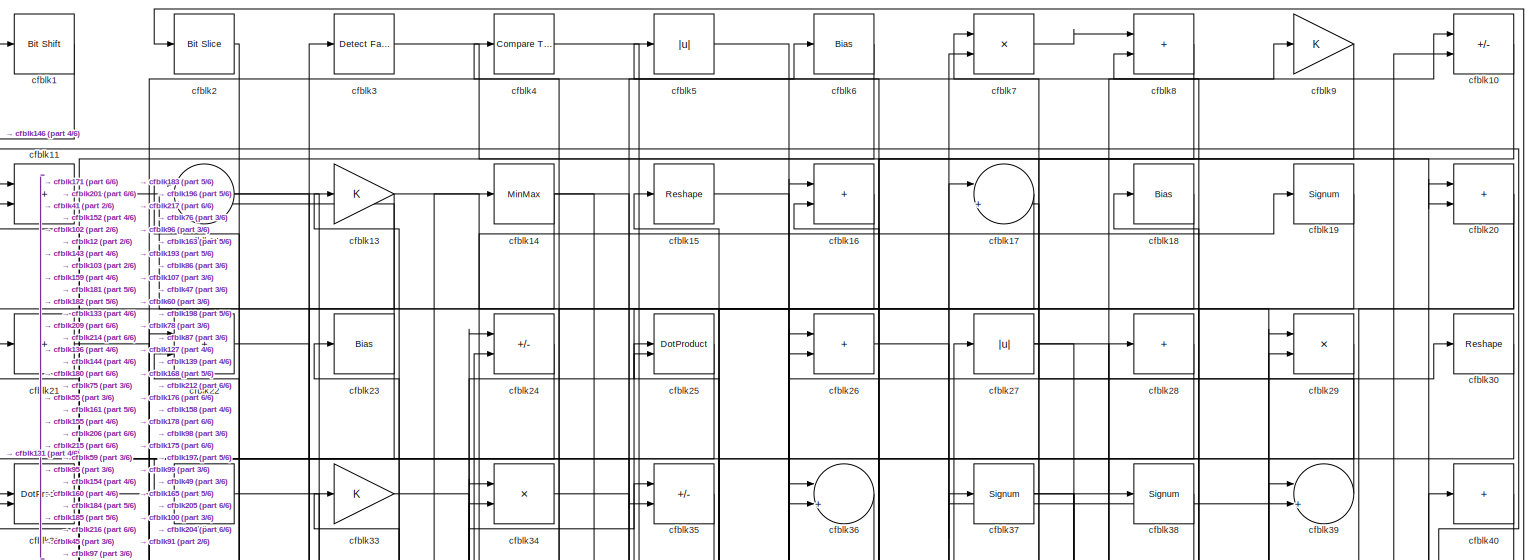
[diagram: root canvas - part 1/6, full width, top band]
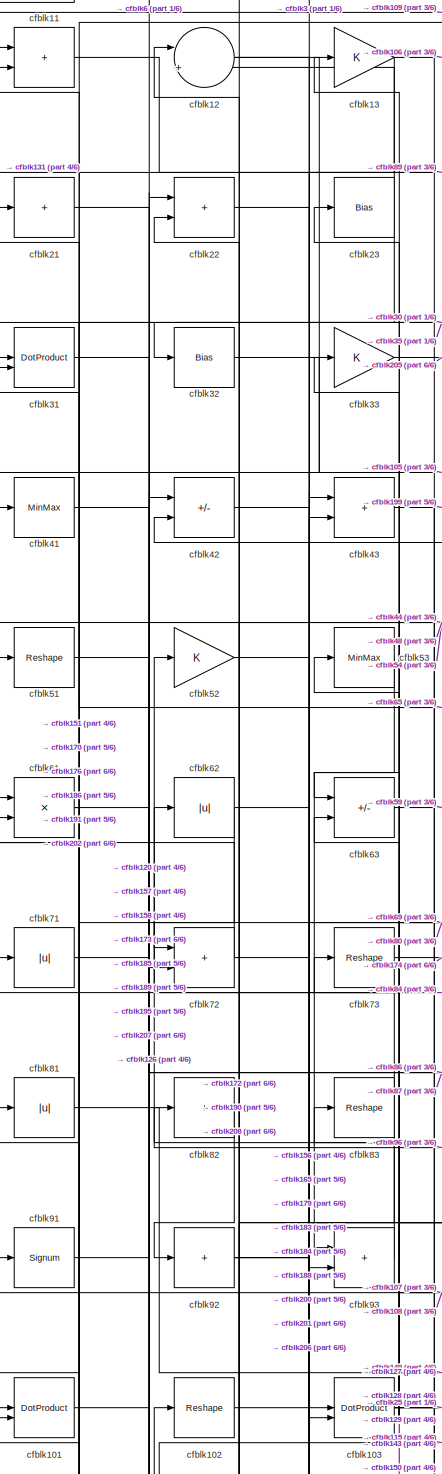
[diagram: root canvas - part 2/6, top left region]
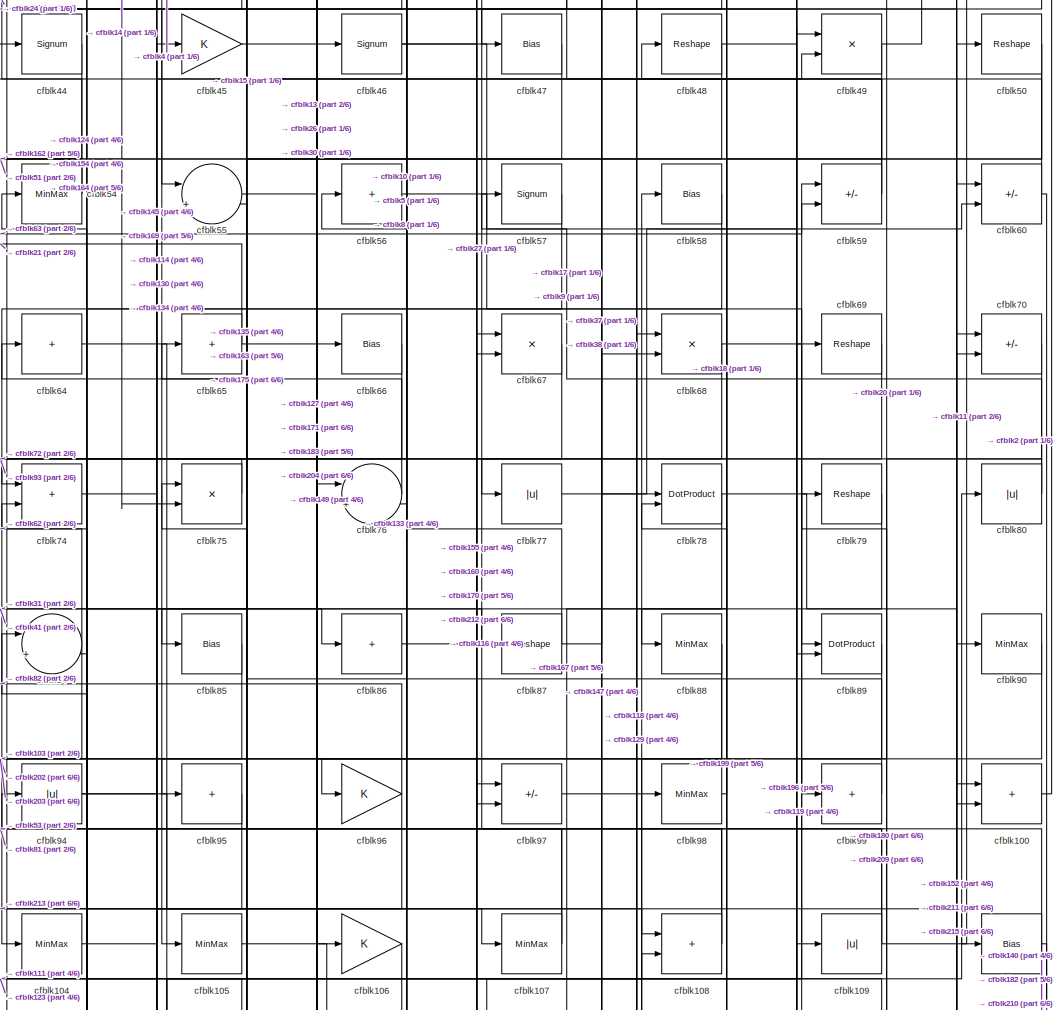
[diagram: root canvas - part 3/6, central region]
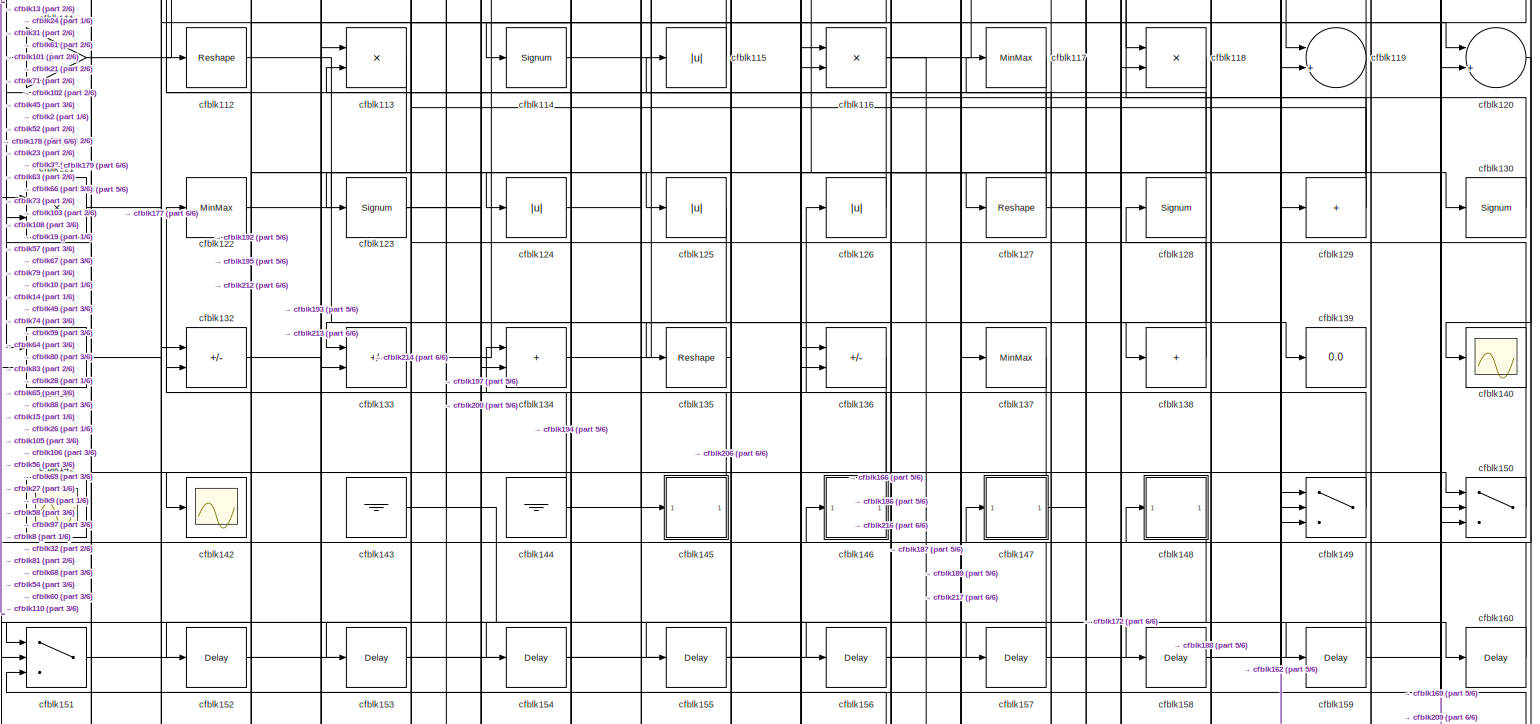
[diagram: root canvas - part 4/6, full width, middle band]
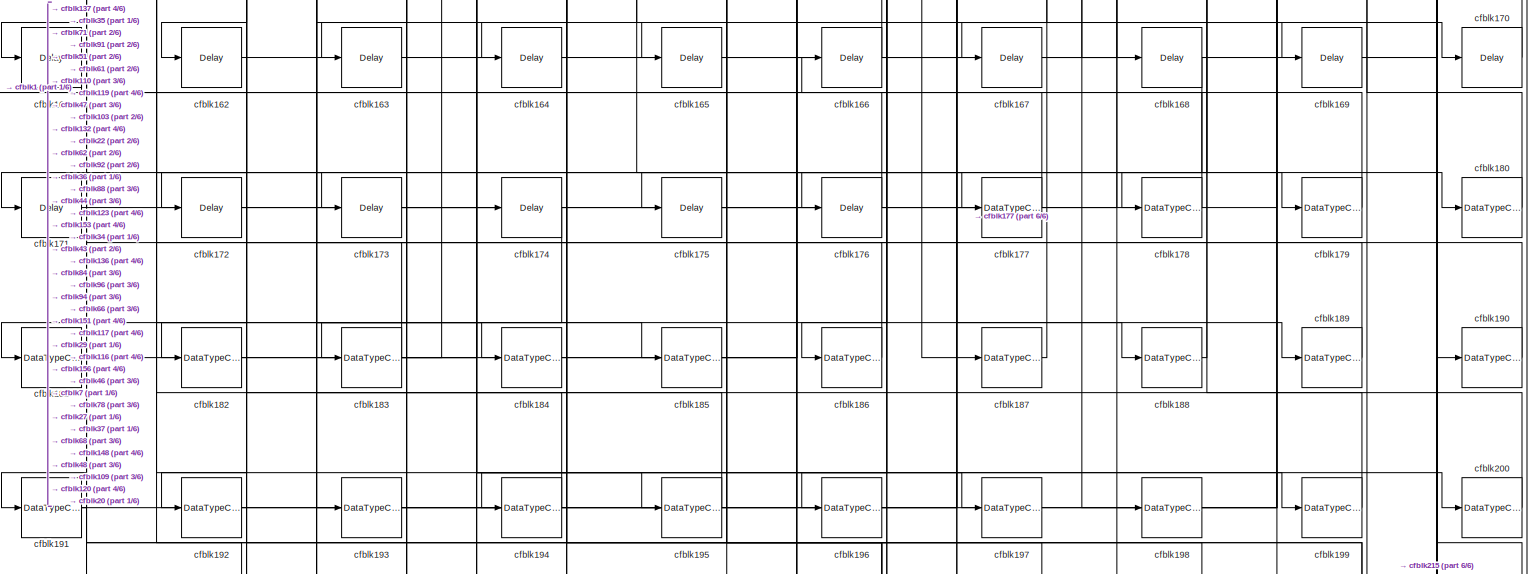
[diagram: root canvas - part 5/6, full width, bottom band]
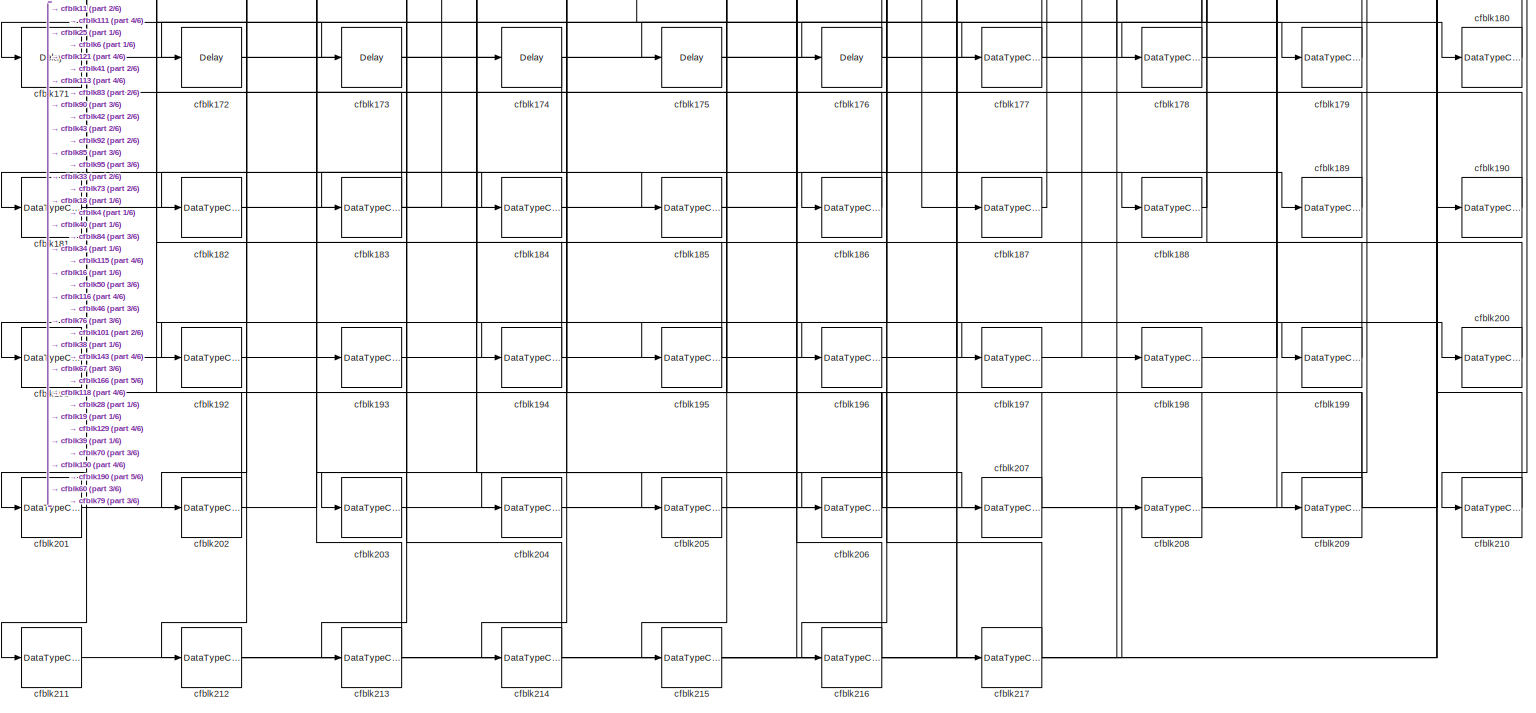
[diagram: root canvas - part 6/6, full width, bottom band]
MODEL slx_230ff69d2a7d
KIND model
CONFIG AbsTol = auto
CONFIG EnableMultiTasking = off
CONFIG FixedStep = auto
CONFIG MaxStep = auto
CONFIG MinStep = auto
CONFIG RelTol = 1e-3
CONFIG SampleTimeConstraint = Unconstrained
CONFIG SolverName = VariableStepAuto
CONFIG StartTime = 0.0
CONFIG StopTime = 10.0
BLOCK [Reference] cfblk1  REF=hdlsllib/Logic and Bit
Operations/Bit Shift
  SourceBlock = hdlsllib/Logic and Bit\nOperations/Bit Shift
  SourceType = Bit Shift
BLOCK [Sum] cfblk10
  IconShape = rectangular
  Inputs = +-
BLOCK [Sum] cfblk100
  IconShape = rectangular
BLOCK [DotProduct] cfblk101
  OutDataTypeStr = Inherit: Inherit via internal rule
BLOCK [Reshape] cfblk102
BLOCK [DotProduct] cfblk103
  OutDataTypeStr = Inherit: Inherit via internal rule
BLOCK [MinMax] cfblk104
BLOCK [MinMax] cfblk105
BLOCK [Gain] cfblk106
BLOCK [MinMax] cfblk107
BLOCK [Sum] cfblk108
  IconShape = rectangular
BLOCK [Abs] cfblk109
  SaturateOnIntegerOverflow = off
BLOCK [Sum] cfblk11
  IconShape = rectangular
BLOCK [Bias] cfblk110
  Bias = 0.0
  SaturateOnIntegerOverflow = off
BLOCK [Gain] cfblk111
BLOCK [Reshape] cfblk112
BLOCK [Product] cfblk113
  Inputs = */
  RndMeth = Zero
  SaturateOnIntegerOverflow = on
BLOCK [Signum] cfblk114
BLOCK [Abs] cfblk115
  SaturateOnIntegerOverflow = off
BLOCK [Product] cfblk116
  Inputs = */
  RndMeth = Zero
  SaturateOnIntegerOverflow = on
BLOCK [MinMax] cfblk117
BLOCK [Product] cfblk118
  Inputs = */
  RndMeth = Zero
  SaturateOnIntegerOverflow = on
BLOCK [Sum] cfblk119
  Inputs = |++
BLOCK [Sum] cfblk12
  Inputs = |++
BLOCK [Sum] cfblk120
  Inputs = |++
BLOCK [Product] cfblk121
  Inputs = */
  RndMeth = Zero
  SaturateOnIntegerOverflow = on
BLOCK [MinMax] cfblk122
BLOCK [Signum] cfblk123
BLOCK [Abs] cfblk124
  SaturateOnIntegerOverflow = off
BLOCK [Abs] cfblk125
  SaturateOnIntegerOverflow = off
BLOCK [Abs] cfblk126
  SaturateOnIntegerOverflow = off
BLOCK [Reshape] cfblk127
BLOCK [Signum] cfblk128
BLOCK [Sum] cfblk129
  IconShape = rectangular
  Inputs = +
BLOCK [Gain] cfblk13
BLOCK [Signum] cfblk130
BLOCK [Sum] cfblk131
  IconShape = rectangular
BLOCK [Sum] cfblk132
  IconShape = rectangular
  Inputs = +-
BLOCK [Sum] cfblk133
  IconShape = rectangular
  Inputs = +-
BLOCK [Sum] cfblk134
  IconShape = rectangular
BLOCK [Reshape] cfblk135
BLOCK [Sum] cfblk136
  IconShape = rectangular
  Inputs = +-
BLOCK [MinMax] cfblk137
BLOCK [Sum] cfblk138
  IconShape = rectangular
  Inputs = +
BLOCK [Display] cfblk139
  Decimation = 1
BLOCK [MinMax] cfblk14
BLOCK [Scope] cfblk140
  Floating = off
  NumInputPorts = 1
  ScopeSpecificationString = Simulink.scopes.TimeScopeBlockCfg('CurrentConfiguration', extmgr.ConfigurationSet(extmgr.Configuration('Core','General UI',true),extmgr.Configuration('Core','Source UI',true),extmgr.Configuration('Sources','WiredSimulink',true,'DataLoggingVariableName','ScopeData2','DataLoggingSaveFormat','Array','DataLoggingLimitDataPoints',true,'DataLoggingDecimation','1'),extmgr.Configuration('Visuals','Time Do...<+868ch>
BLOCK [Scope] cfblk141
  Floating = on
  NumInputPorts = 1
  ScopeSpecificationString = Simulink.scopes.TimeScopeBlockCfg('CurrentConfiguration', extmgr.ConfigurationSet(extmgr.Configuration('Core','General UI',true,'FigureColor',[0.156862745098039 0.156862745098039 0.156862745098039]),extmgr.Configuration('Core','Source UI',true),extmgr.Configuration('Sources','WiredSimulink',true,'DataLoggingVariableName','ScopeData1','DataLoggingSaveFormat','StructureWithTime','DataLoggingLimitDat...<+2713ch>
BLOCK [Scope] cfblk142
  Floating = off
  NumInputPorts = 1
  ScopeSpecificationString = Simulink.scopes.TimeScopeBlockCfg('CurrentConfiguration', extmgr.ConfigurationSet(extmgr.Configuration('Core','General UI',true),extmgr.Configuration('Core','Source UI',true),extmgr.Configuration('Sources','WiredSimulink',true,'DataLoggingVariableName','ScopeData2','DataLoggingSaveFormat','Array','DataLoggingLimitDataPoints',true,'DataLoggingDecimation','1'),extmgr.Configuration('Visuals','Time Do...<+868ch>
BLOCK [Ground] cfblk143
BLOCK [Ground] cfblk144
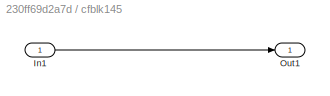
BLOCK [SubSystem] cfblk145
  LibrarySourceBlock = hdlsllib/Ports &\nSubsystems/Subsystem
BLOCK [Inport] cfblk145/In1
BLOCK [Outport] cfblk145/Out1
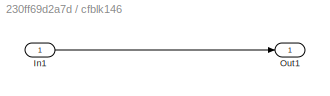
BLOCK [SubSystem] cfblk146
  LibrarySourceBlock = hdlsllib/Ports &\nSubsystems/Subsystem
BLOCK [Inport] cfblk146/In1
BLOCK [Outport] cfblk146/Out1
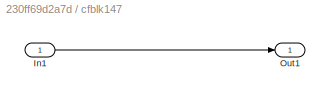
BLOCK [SubSystem] cfblk147
  LibrarySourceBlock = hdlsllib/Ports &\nSubsystems/Subsystem
BLOCK [Inport] cfblk147/In1
BLOCK [Outport] cfblk147/Out1
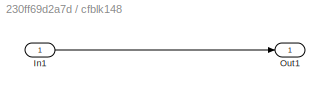
BLOCK [SubSystem] cfblk148
  LibrarySourceBlock = hdlsllib/Ports &\nSubsystems/Subsystem
BLOCK [Inport] cfblk148/In1
BLOCK [Outport] cfblk148/Out1
BLOCK [Switch] cfblk149
  InputSameDT = off
  SaturateOnIntegerOverflow = off
BLOCK [Reshape] cfblk15
BLOCK [Switch] cfblk150
  InputSameDT = off
  SaturateOnIntegerOverflow = off
BLOCK [Switch] cfblk151
  InputSameDT = off
  SaturateOnIntegerOverflow = off
BLOCK [Delay] cfblk152
  InputPortMap = u0
  SampleTime = 1
BLOCK [Delay] cfblk153
  InputPortMap = u0
  SampleTime = 1
BLOCK [Delay] cfblk154
  InputPortMap = u0
  SampleTime = 1
BLOCK [Delay] cfblk155
  InputPortMap = u0
  SampleTime = 1
BLOCK [Delay] cfblk156
  InputPortMap = u0
  SampleTime = 1
BLOCK [Delay] cfblk157
  InputPortMap = u0
  SampleTime = 1
BLOCK [Delay] cfblk158
  InputPortMap = u0
  SampleTime = 1
BLOCK [Delay] cfblk159
  InputPortMap = u0
  SampleTime = 1
BLOCK [Sum] cfblk16
  IconShape = rectangular
BLOCK [Delay] cfblk160
  InputPortMap = u0
  SampleTime = 1
BLOCK [Delay] cfblk161
  InputPortMap = u0
  SampleTime = 1
BLOCK [Delay] cfblk162
  InputPortMap = u0
  SampleTime = 1
BLOCK [Delay] cfblk163
  InputPortMap = u0
  SampleTime = 1
BLOCK [Delay] cfblk164
  InputPortMap = u0
  SampleTime = 1
BLOCK [Delay] cfblk165
  InputPortMap = u0
  SampleTime = 1
BLOCK [Delay] cfblk166
  InputPortMap = u0
  SampleTime = 1
BLOCK [Delay] cfblk167
  InputPortMap = u0
  SampleTime = 1
BLOCK [Delay] cfblk168
  InputPortMap = u0
  SampleTime = 1
BLOCK [Delay] cfblk169
  InputPortMap = u0
  SampleTime = 1
BLOCK [Sum] cfblk17
  Inputs = |++
BLOCK [Delay] cfblk170
  InputPortMap = u0
  SampleTime = 1
BLOCK [Delay] cfblk171
  InputPortMap = u0
  SampleTime = 1
BLOCK [Delay] cfblk172
  InputPortMap = u0
  SampleTime = 1
BLOCK [Delay] cfblk173
  InputPortMap = u0
  SampleTime = 1
BLOCK [Delay] cfblk174
  InputPortMap = u0
  SampleTime = 1
BLOCK [Delay] cfblk175
  InputPortMap = u0
  SampleTime = 1
BLOCK [Delay] cfblk176
  InputPortMap = u0
  SampleTime = 1
BLOCK [DataTypeConversion] cfblk177
  OutDataTypeStr = uint8
  RndMeth = Floor
  SaturateOnIntegerOverflow = off
BLOCK [DataTypeConversion] cfblk178
  OutDataTypeStr = uint8
  RndMeth = Floor
  SaturateOnIntegerOverflow = off
BLOCK [DataTypeConversion] cfblk179
  OutDataTypeStr = uint8
  RndMeth = Floor
  SaturateOnIntegerOverflow = off
BLOCK [Bias] cfblk18
  Bias = 0.0
  SaturateOnIntegerOverflow = off
BLOCK [DataTypeConversion] cfblk180
  OutDataTypeStr = uint8
  RndMeth = Floor
  SaturateOnIntegerOverflow = off
BLOCK [DataTypeConversion] cfblk181
  OutDataTypeStr = uint8
  RndMeth = Floor
  SaturateOnIntegerOverflow = off
BLOCK [DataTypeConversion] cfblk182
  OutDataTypeStr = uint8
  RndMeth = Floor
  SaturateOnIntegerOverflow = off
BLOCK [DataTypeConversion] cfblk183
  RndMeth = Floor
  SaturateOnIntegerOverflow = off
BLOCK [DataTypeConversion] cfblk184
  OutDataTypeStr = uint8
  RndMeth = Floor
  SaturateOnIntegerOverflow = off
BLOCK [DataTypeConversion] cfblk185
  OutDataTypeStr = uint8
  RndMeth = Floor
  SaturateOnIntegerOverflow = off
BLOCK [DataTypeConversion] cfblk186
  OutDataTypeStr = uint8
  RndMeth = Floor
  SaturateOnIntegerOverflow = off
BLOCK [DataTypeConversion] cfblk187
  OutDataTypeStr = uint8
  RndMeth = Floor
  SaturateOnIntegerOverflow = off
BLOCK [DataTypeConversion] cfblk188
  OutDataTypeStr = uint8
  RndMeth = Floor
  SaturateOnIntegerOverflow = off
BLOCK [DataTypeConversion] cfblk189
  OutDataTypeStr = uint8
  RndMeth = Floor
  SaturateOnIntegerOverflow = off
BLOCK [Signum] cfblk19
BLOCK [DataTypeConversion] cfblk190
  OutDataTypeStr = uint8
  RndMeth = Floor
  SaturateOnIntegerOverflow = off
BLOCK [DataTypeConversion] cfblk191
  RndMeth = Floor
  SaturateOnIntegerOverflow = off
BLOCK [DataTypeConversion] cfblk192
  OutDataTypeStr = uint8
  RndMeth = Floor
  SaturateOnIntegerOverflow = off
BLOCK [DataTypeConversion] cfblk193
  OutDataTypeStr = uint8
  RndMeth = Floor
  SaturateOnIntegerOverflow = off
BLOCK [DataTypeConversion] cfblk194
  OutDataTypeStr = uint8
  RndMeth = Floor
  SaturateOnIntegerOverflow = off
BLOCK [DataTypeConversion] cfblk195
  OutDataTypeStr = uint8
  RndMeth = Floor
  SaturateOnIntegerOverflow = off
BLOCK [DataTypeConversion] cfblk196
  OutDataTypeStr = uint8
  RndMeth = Floor
  SaturateOnIntegerOverflow = off
BLOCK [DataTypeConversion] cfblk197
  OutDataTypeStr = uint8
  RndMeth = Floor
  SaturateOnIntegerOverflow = off
BLOCK [DataTypeConversion] cfblk198
  OutDataTypeStr = uint8
  RndMeth = Floor
  SaturateOnIntegerOverflow = off
BLOCK [DataTypeConversion] cfblk199
  OutDataTypeStr = uint8
  RndMeth = Floor
  SaturateOnIntegerOverflow = off
BLOCK [Reference] cfblk2  REF=hdlsllib/Logic and Bit
Operations/Bit Slice
  SourceBlock = hdlsllib/Logic and Bit\nOperations/Bit Slice
  SourceType = Bit Slice
BLOCK [Sum] cfblk20
  IconShape = rectangular
BLOCK [DataTypeConversion] cfblk200
  OutDataTypeStr = uint8
  RndMeth = Floor
  SaturateOnIntegerOverflow = off
BLOCK [DataTypeConversion] cfblk201
  OutDataTypeStr = uint8
  RndMeth = Floor
  SaturateOnIntegerOverflow = off
BLOCK [DataTypeConversion] cfblk202
  OutDataTypeStr = uint8
  RndMeth = Floor
  SaturateOnIntegerOverflow = off
BLOCK [DataTypeConversion] cfblk203
  OutDataTypeStr = uint8
  RndMeth = Floor
  SaturateOnIntegerOverflow = off
BLOCK [DataTypeConversion] cfblk204
  OutDataTypeStr = uint8
  RndMeth = Floor
  SaturateOnIntegerOverflow = off
BLOCK [DataTypeConversion] cfblk205
  OutDataTypeStr = uint8
  RndMeth = Floor
  SaturateOnIntegerOverflow = off
BLOCK [DataTypeConversion] cfblk206
  RndMeth = Floor
  SaturateOnIntegerOverflow = off
BLOCK [DataTypeConversion] cfblk207
  OutDataTypeStr = uint8
  RndMeth = Floor
  SaturateOnIntegerOverflow = off
BLOCK [DataTypeConversion] cfblk208
  OutDataTypeStr = uint8
  RndMeth = Floor
  SaturateOnIntegerOverflow = off
BLOCK [DataTypeConversion] cfblk209
  RndMeth = Floor
  SaturateOnIntegerOverflow = off
BLOCK [Sum] cfblk21
  IconShape = rectangular
  Inputs = +
BLOCK [DataTypeConversion] cfblk210
  OutDataTypeStr = uint8
  RndMeth = Floor
  SaturateOnIntegerOverflow = off
BLOCK [DataTypeConversion] cfblk211
  OutDataTypeStr = uint8
  RndMeth = Floor
  SaturateOnIntegerOverflow = off
BLOCK [DataTypeConversion] cfblk212
  RndMeth = Floor
  SaturateOnIntegerOverflow = off
BLOCK [DataTypeConversion] cfblk213
  OutDataTypeStr = uint8
  RndMeth = Floor
  SaturateOnIntegerOverflow = off
BLOCK [DataTypeConversion] cfblk214
  OutDataTypeStr = uint8
  RndMeth = Floor
  SaturateOnIntegerOverflow = off
BLOCK [DataTypeConversion] cfblk215
  RndMeth = Floor
  SaturateOnIntegerOverflow = off
BLOCK [DataTypeConversion] cfblk216
  OutDataTypeStr = uint8
  RndMeth = Floor
  SaturateOnIntegerOverflow = off
BLOCK [DataTypeConversion] cfblk217
  OutDataTypeStr = uint8
  RndMeth = Floor
  SaturateOnIntegerOverflow = off
BLOCK [Sum] cfblk22
  IconShape = rectangular
BLOCK [Bias] cfblk23
  Bias = 0.0
  SaturateOnIntegerOverflow = off
BLOCK [Sum] cfblk24
  IconShape = rectangular
  Inputs = +-
BLOCK [DotProduct] cfblk25
  OutDataTypeStr = Inherit: Inherit via internal rule
BLOCK [Sum] cfblk26
  IconShape = rectangular
BLOCK [Abs] cfblk27
  SaturateOnIntegerOverflow = off
BLOCK [Sum] cfblk28
  IconShape = rectangular
  Inputs = +
BLOCK [Product] cfblk29
  Inputs = */
  RndMeth = Zero
  SaturateOnIntegerOverflow = on
BLOCK [Reference] cfblk3  REF=hdlsllib/Logic and Bit
Operations/Detect Fall
Negative
  SourceBlock = hdlsllib/Logic and Bit\nOperations/Detect Fall\nNegative
  SourceType = Detect Fall Negative
BLOCK [Reshape] cfblk30
BLOCK [DotProduct] cfblk31
  OutDataTypeStr = Inherit: Inherit via internal rule
BLOCK [Bias] cfblk32
  Bias = 0.0
  SaturateOnIntegerOverflow = off
BLOCK [Gain] cfblk33
BLOCK [Product] cfblk34
  Inputs = */
  RndMeth = Zero
  SaturateOnIntegerOverflow = on
BLOCK [Sum] cfblk35
  IconShape = rectangular
  Inputs = +-
BLOCK [Sum] cfblk36
  Inputs = |++
BLOCK [Signum] cfblk37
BLOCK [Signum] cfblk38
BLOCK [Sum] cfblk39
  Inputs = |++
BLOCK [Reference] cfblk4  REF=hdlsllib/Logic and Bit
Operations/Compare
To Constant
  SourceBlock = hdlsllib/Logic and Bit\nOperations/Compare\nTo Constant
  SourceType = Compare To Constant
BLOCK [Sum] cfblk40
  IconShape = rectangular
  Inputs = +
BLOCK [MinMax] cfblk41
BLOCK [Sum] cfblk42
  IconShape = rectangular
  Inputs = +-
BLOCK [Sum] cfblk43
  IconShape = rectangular
BLOCK [Signum] cfblk44
BLOCK [Gain] cfblk45
BLOCK [Signum] cfblk46
BLOCK [Bias] cfblk47
  Bias = 0.0
  SaturateOnIntegerOverflow = off
BLOCK [Reshape] cfblk48
BLOCK [Product] cfblk49
  Inputs = */
  RndMeth = Zero
  SaturateOnIntegerOverflow = on
BLOCK [Abs] cfblk5
  SaturateOnIntegerOverflow = off
BLOCK [Reshape] cfblk50
BLOCK [Reshape] cfblk51
BLOCK [Gain] cfblk52
BLOCK [MinMax] cfblk53
BLOCK [MinMax] cfblk54
BLOCK [Sum] cfblk55
  Inputs = |++
BLOCK [Sum] cfblk56
  IconShape = rectangular
  Inputs = +
BLOCK [Signum] cfblk57
BLOCK [Bias] cfblk58
  Bias = 0.0
  SaturateOnIntegerOverflow = off
BLOCK [Sum] cfblk59
  IconShape = rectangular
  Inputs = +-
BLOCK [Bias] cfblk6
  Bias = 0.0
  SaturateOnIntegerOverflow = off
BLOCK [Sum] cfblk60
  IconShape = rectangular
  Inputs = +-
BLOCK [Product] cfblk61
  Inputs = */
  RndMeth = Zero
  SaturateOnIntegerOverflow = on
BLOCK [Abs] cfblk62
  SaturateOnIntegerOverflow = off
BLOCK [Sum] cfblk63
  IconShape = rectangular
  Inputs = +-
BLOCK [Sum] cfblk64
  IconShape = rectangular
  Inputs = +
BLOCK [Sum] cfblk65
  IconShape = rectangular
  Inputs = +
BLOCK [Bias] cfblk66
  Bias = 0.0
  SaturateOnIntegerOverflow = off
BLOCK [Product] cfblk67
  Inputs = */
  RndMeth = Zero
  SaturateOnIntegerOverflow = on
BLOCK [Product] cfblk68
  Inputs = */
  RndMeth = Zero
  SaturateOnIntegerOverflow = on
BLOCK [Reshape] cfblk69
BLOCK [Product] cfblk7
  Inputs = */
  RndMeth = Zero
  SaturateOnIntegerOverflow = on
BLOCK [Sum] cfblk70
  IconShape = rectangular
  Inputs = +-
BLOCK [Abs] cfblk71
  SaturateOnIntegerOverflow = off
BLOCK [Sum] cfblk72
  IconShape = rectangular
BLOCK [Reshape] cfblk73
BLOCK [Sum] cfblk74
  IconShape = rectangular
BLOCK [Product] cfblk75
  Inputs = */
  RndMeth = Zero
  SaturateOnIntegerOverflow = on
BLOCK [Sum] cfblk76
  Inputs = |++
BLOCK [Abs] cfblk77
  SaturateOnIntegerOverflow = off
BLOCK [DotProduct] cfblk78
  OutDataTypeStr = Inherit: Inherit via internal rule
BLOCK [Reshape] cfblk79
BLOCK [Sum] cfblk8
  IconShape = rectangular
BLOCK [Abs] cfblk80
  SaturateOnIntegerOverflow = off
BLOCK [Abs] cfblk81
  SaturateOnIntegerOverflow = off
BLOCK [Sum] cfblk82
  IconShape = rectangular
  Inputs = +
BLOCK [Reshape] cfblk83
BLOCK [Sum] cfblk84
  Inputs = |++
BLOCK [Bias] cfblk85
  Bias = 0.0
  SaturateOnIntegerOverflow = off
BLOCK [Sum] cfblk86
  IconShape = rectangular
  Inputs = +
BLOCK [Reshape] cfblk87
BLOCK [MinMax] cfblk88
BLOCK [DotProduct] cfblk89
  OutDataTypeStr = Inherit: Inherit via internal rule
BLOCK [Gain] cfblk9
BLOCK [MinMax] cfblk90
BLOCK [Signum] cfblk91
BLOCK [Sum] cfblk92
  IconShape = rectangular
  Inputs = +
BLOCK [Sum] cfblk93
  IconShape = rectangular
BLOCK [Abs] cfblk94
  SaturateOnIntegerOverflow = off
BLOCK [Sum] cfblk95
  IconShape = rectangular
  Inputs = +
BLOCK [Gain] cfblk96
BLOCK [Sum] cfblk97
  IconShape = rectangular
  Inputs = +-
BLOCK [MinMax] cfblk98
BLOCK [Sum] cfblk99
  IconShape = rectangular
  Inputs = +
LINE cfblk100:1 -> cfblk2:1
LINE cfblk101:1 -> cfblk120:1
LINE cfblk102:1 -> cfblk3:1
NET cfblk103:1 -> cfblk150:1, cfblk25:1, cfblk35:1
LINE cfblk104:1 -> cfblk108:1
LINE cfblk105:1 -> cfblk149:2
LINE cfblk106:1 -> cfblk133:1
NET cfblk107:1 -> cfblk27:1, cfblk81:1
NET cfblk108:1 -> cfblk53:1, cfblk94:1
NET cfblk109:1 -> cfblk11:1, cfblk74:2, cfblk78:2
LINE cfblk10:1 -> cfblk96:1
NET cfblk110:1 -> cfblk140:1, cfblk182:1, cfblk75:1
LINE cfblk111:1 -> cfblk45:1
LINE cfblk112:1 -> cfblk138:1
LINE cfblk113:1 -> cfblk212:1
LINE cfblk114:1 -> cfblk80:1
LINE cfblk115:1 -> cfblk83:1
NET cfblk116:1 -> cfblk187:1, cfblk69:1
LINE cfblk117:1 -> cfblk186:1
LINE cfblk118:1 -> cfblk216:1
NET cfblk119:1 -> cfblk192:1, cfblk54:1
LINE cfblk11:1 -> cfblk89:2
LINE cfblk120:1 -> cfblk147:1
LINE cfblk121:1 -> cfblk177:1
LINE cfblk122:1 -> cfblk125:1
NET cfblk123:1 -> cfblk108:2, cfblk197:1
LINE cfblk124:1 -> cfblk49:2
LINE cfblk125:1 -> cfblk153:1
LINE cfblk126:1 -> cfblk102:1
NET cfblk127:1 -> cfblk23:1, cfblk9:1
NET cfblk128:1 -> cfblk134:2, cfblk63:2
NET cfblk129:1 -> cfblk58:1, cfblk73:1
NET cfblk12:1 -> cfblk105:1, cfblk35:2
LINE cfblk130:1 -> cfblk56:1
LINE cfblk131:1 -> cfblk159:1
LINE cfblk132:1 -> cfblk193:1
LINE cfblk133:1 -> cfblk19:1
LINE cfblk134:1 -> cfblk59:2
LINE cfblk135:1 -> cfblk65:1
LINE cfblk136:1 -> cfblk194:1
LINE cfblk137:1 -> cfblk191:1
LINE cfblk138:1 -> cfblk128:1
NET cfblk13:1 -> cfblk106:1, cfblk131:1
NET cfblk143:1 -> cfblk13:1, cfblk14:1, cfblk217:1
NET cfblk144:1 -> cfblk10:1, cfblk112:1
LINE cfblk145/In1:1 -> cfblk145/Out1:1
LINE cfblk145:1 -> cfblk122:1
LINE cfblk146/In1:1 -> cfblk146/Out1:1
LINE cfblk146:1 -> cfblk126:1
LINE cfblk147/In1:1 -> cfblk147/Out1:1
NET cfblk147:1 -> cfblk142:1, cfblk68:2
LINE cfblk148/In1:1 -> cfblk148/Out1:1
LINE cfblk148:1 -> cfblk151:2
LINE cfblk149:1 -> cfblk134:1
NET cfblk14:1 -> cfblk133:2, cfblk136:2, cfblk75:2
LINE cfblk150:1 -> cfblk33:1
LINE cfblk151:1 -> cfblk136:1
LINE cfblk152:1 -> cfblk60:1
LINE cfblk153:1 -> cfblk200:1
LINE cfblk154:1 -> cfblk26:1
LINE cfblk155:1 -> cfblk97:1
LINE cfblk156:1 -> cfblk189:1
LINE cfblk157:1 -> cfblk31:1
LINE cfblk158:1 -> cfblk8:2
LINE cfblk159:1 -> cfblk24:1
LINE cfblk15:1 -> cfblk160:1
LINE cfblk160:1 -> cfblk67:1
LINE cfblk161:1 -> cfblk1:1
LINE cfblk162:1 -> cfblk119:2
LINE cfblk163:1 -> cfblk7:2
LINE cfblk164:1 -> cfblk84:1
LINE cfblk165:1 -> cfblk20:1
LINE cfblk166:1 -> cfblk151:3
LINE cfblk167:1 -> cfblk68:1
LINE cfblk168:1 -> cfblk181:1
LINE cfblk169:1 -> cfblk120:2
LINE cfblk16:1 -> cfblk215:1
LINE cfblk170:1 -> cfblk61:2
LINE cfblk171:1 -> cfblk76:1
LINE cfblk172:1 -> cfblk118:2
LINE cfblk173:1 -> cfblk207:1
LINE cfblk174:1 -> cfblk211:1
LINE cfblk175:1 -> cfblk39:1
LINE cfblk176:1 -> cfblk101:2
LINE cfblk177:1 -> cfblk166:1
LINE cfblk178:1 -> cfblk121:1
LINE cfblk179:1 -> cfblk121:2
LINE cfblk17:1 -> cfblk95:1
LINE cfblk180:1 -> cfblk79:1
LINE cfblk181:1 -> cfblk34:1
LINE cfblk182:1 -> cfblk34:2
NET cfblk183:1 -> cfblk103:1, cfblk44:1, cfblk66:1
LINE cfblk184:1 -> cfblk36:1
LINE cfblk185:1 -> cfblk36:2
LINE cfblk186:1 -> cfblk71:1
LINE cfblk187:1 -> cfblk117:1
LINE cfblk188:1 -> cfblk148:1
LINE cfblk189:1 -> cfblk22:1
LINE cfblk18:1 -> cfblk214:1
LINE cfblk190:1 -> cfblk22:2
NET cfblk191:1 -> cfblk116:2, cfblk91:1
LINE cfblk192:1 -> cfblk137:1
LINE cfblk193:1 -> cfblk37:1
LINE cfblk194:1 -> cfblk132:1
LINE cfblk195:1 -> cfblk132:2
LINE cfblk196:1 -> cfblk109:1
LINE cfblk197:1 -> cfblk29:1
LINE cfblk198:1 -> cfblk29:2
LINE cfblk199:1 -> cfblk48:1
LINE cfblk19:1 -> cfblk178:1
LINE cfblk1:1 -> cfblk146:1
LINE cfblk200:1 -> cfblk43:1
LINE cfblk201:1 -> cfblk43:2
LINE cfblk202:1 -> cfblk11:2
LINE cfblk203:1 -> cfblk90:1
LINE cfblk204:1 -> cfblk46:1
LINE cfblk205:1 -> cfblk40:1
NET cfblk206:1 -> cfblk111:1, cfblk115:1, cfblk129:1, cfblk25:2
LINE cfblk207:1 -> cfblk42:1
LINE cfblk208:1 -> cfblk42:2
NET cfblk209:1 -> cfblk150:3, cfblk4:1, cfblk84:2
NET cfblk20:1 -> cfblk55:1, cfblk99:1
LINE cfblk210:1 -> cfblk70:1
LINE cfblk211:1 -> cfblk70:2
NET cfblk212:1 -> cfblk116:1, cfblk28:1, cfblk67:2
LINE cfblk213:1 -> cfblk113:1
LINE cfblk214:1 -> cfblk113:2
NET cfblk215:1 -> cfblk190:1, cfblk208:1, cfblk50:1
LINE cfblk216:1 -> cfblk16:1
LINE cfblk217:1 -> cfblk16:2
LINE cfblk21:1 -> cfblk158:1
LINE cfblk22:1 -> cfblk188:1
NET cfblk23:1 -> cfblk12:2, cfblk32:1
LINE cfblk24:1 -> cfblk131:2
LINE cfblk25:1 -> cfblk171:1
LINE cfblk26:1 -> cfblk39:2
NET cfblk27:1 -> cfblk139:1, cfblk168:1
LINE cfblk28:1 -> cfblk155:1
LINE cfblk29:1 -> cfblk196:1
LINE cfblk2:1 -> cfblk152:1
LINE cfblk30:1 -> cfblk41:1
LINE cfblk31:1 -> cfblk87:1
LINE cfblk32:1 -> cfblk149:3
LINE cfblk33:1 -> cfblk205:1
LINE cfblk34:1 -> cfblk180:1
LINE cfblk35:1 -> cfblk161:1
LINE cfblk36:1 -> cfblk183:1
NET cfblk37:1 -> cfblk198:1, cfblk78:1
LINE cfblk38:1 -> cfblk176:1
LINE cfblk39:1 -> cfblk7:1
LINE cfblk3:1 -> cfblk20:2
LINE cfblk40:1 -> cfblk204:1
NET cfblk41:1 -> cfblk173:1, cfblk86:1
LINE cfblk42:1 -> cfblk206:1
LINE cfblk43:1 -> cfblk199:1
LINE cfblk44:1 -> cfblk63:1
LINE cfblk45:1 -> cfblk30:1
NET cfblk46:1 -> cfblk170:1, cfblk89:1
LINE cfblk47:1 -> cfblk162:1
NET cfblk48:1 -> cfblk110:1, cfblk72:2
NET cfblk49:1 -> cfblk10:2, cfblk88:1
LINE cfblk4:1 -> cfblk100:1
NET cfblk50:1 -> cfblk175:1, cfblk85:1
LINE cfblk51:1 -> cfblk195:1
LINE cfblk52:1 -> cfblk156:1
LINE cfblk53:1 -> cfblk93:1
NET cfblk54:1 -> cfblk12:1, cfblk51:1
LINE cfblk55:1 -> cfblk26:2
LINE cfblk56:1 -> cfblk60:2
LINE cfblk57:1 -> cfblk154:1
LINE cfblk58:1 -> cfblk104:1
NET cfblk59:1 -> cfblk15:1, cfblk24:2
LINE cfblk5:1 -> cfblk97:2
NET cfblk60:1 -> cfblk17:2, cfblk210:1
NET cfblk61:1 -> cfblk151:1, cfblk185:1
NET cfblk62:1 -> cfblk101:1, cfblk184:1
LINE cfblk63:1 -> cfblk59:1
LINE cfblk64:1 -> cfblk130:1
NET cfblk65:1 -> cfblk127:1, cfblk21:1
LINE cfblk66:1 -> cfblk123:1
LINE cfblk67:1 -> cfblk124:1
NET cfblk68:1 -> cfblk119:1, cfblk77:1
LINE cfblk69:1 -> cfblk93:2
LINE cfblk6:1 -> cfblk201:1
LINE cfblk70:1 -> cfblk209:1
LINE cfblk71:1 -> cfblk157:1
NET cfblk72:1 -> cfblk150:2, cfblk31:2
LINE cfblk73:1 -> cfblk174:1
LINE cfblk74:1 -> cfblk145:1
LINE cfblk75:1 -> cfblk74:1
LINE cfblk76:1 -> cfblk64:1
LINE cfblk77:1 -> cfblk49:1
NET cfblk78:1 -> cfblk100:2, cfblk167:1
LINE cfblk79:1 -> cfblk114:1
LINE cfblk7:1 -> cfblk8:1
NET cfblk80:1 -> cfblk57:1, cfblk72:1
LINE cfblk81:1 -> cfblk149:1
LINE cfblk82:1 -> cfblk92:1
NET cfblk83:1 -> cfblk172:1, cfblk61:1
NET cfblk84:1 -> cfblk103:2, cfblk62:1
LINE cfblk85:1 -> cfblk203:1
LINE cfblk86:1 -> cfblk17:1
NET cfblk87:1 -> cfblk38:1, cfblk5:1
NET cfblk88:1 -> cfblk135:1, cfblk163:1
LINE cfblk89:1 -> cfblk98:1
LINE cfblk8:1 -> cfblk76:2
LINE cfblk90:1 -> cfblk202:1
LINE cfblk91:1 -> cfblk6:1
NET cfblk92:1 -> cfblk165:1, cfblk179:1
LINE cfblk93:1 -> cfblk52:1
NET cfblk94:1 -> cfblk107:1, cfblk169:1
LINE cfblk95:1 -> cfblk213:1
NET cfblk96:1 -> cfblk164:1, cfblk82:1
LINE cfblk97:1 -> cfblk118:1
LINE cfblk98:1 -> cfblk18:1
LINE cfblk99:1 -> cfblk55:2
LINE cfblk9:1 -> cfblk47:1
note: NET lines group one-source signal fan-out (src -> all destinations, sorted); 1:1 wires keep LINE
